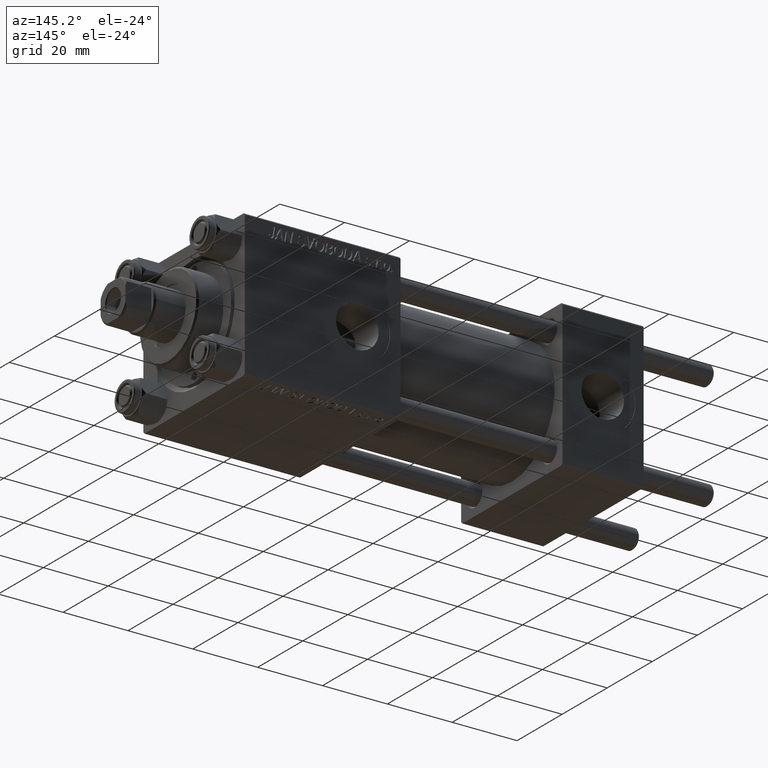
[diagram: clean part render]
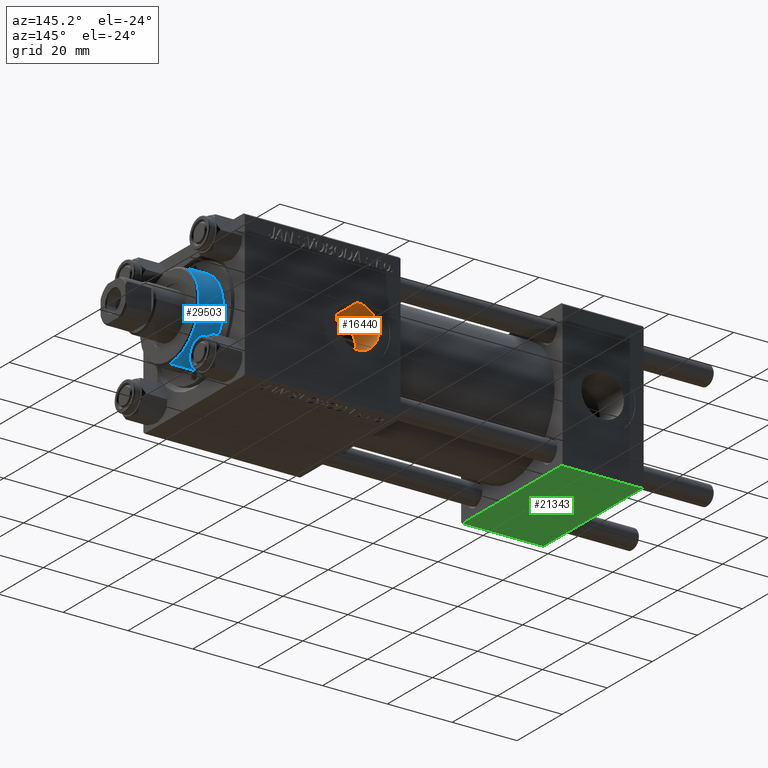
[diagram: same view with three faces highlighted in distinct colors, each labeled with its STEP entity id]
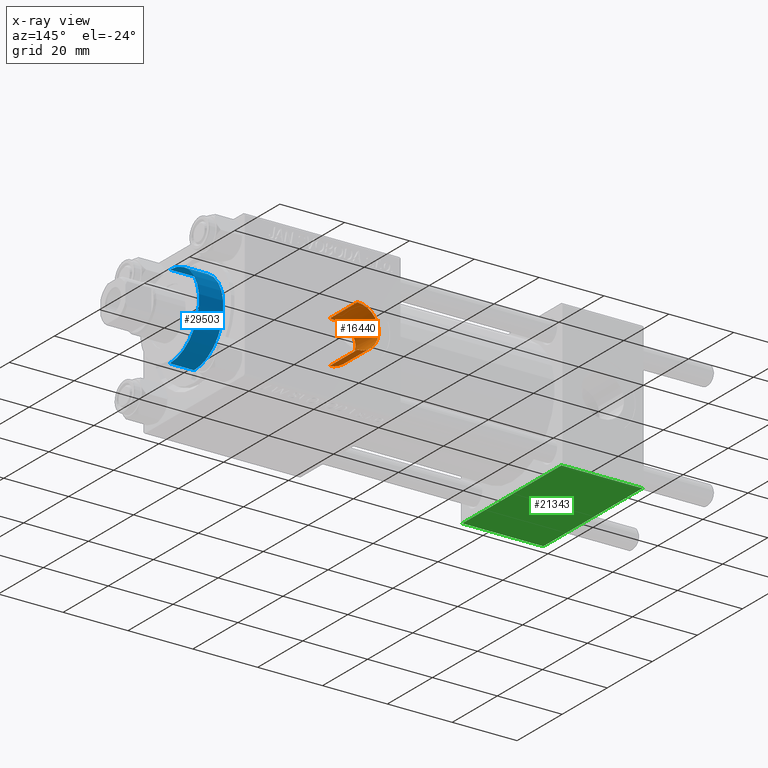
[diagram: x-ray of the same camera — body ghosted, the three highlighted faces saturated]
A machine part, auxiliary view with three faces highlighted in distinct colors.
The next image is the same camera in x-ray (body ghosted, the three faces saturated) — at least one of them is partly hidden behind the body in this view.
Their STEP definitions:

[orange] entity #16440 — the highlighted cylindrical surface (edge-blend (fillet) strip) has radius 6.58 mm, axis along (0, 1, 0).
#179 = VERTEX_POINT ( 'NONE', #22243 ) ;
#506 = FACE_OUTER_BOUND ( 'NONE', #4933, .T. ) ;
#721 = CARTESIAN_POINT ( 'NONE',  ( 81.92692453675883257, 11.81246393882862478, 2.152144203523993937 ) ) ;
#989 = CARTESIAN_POINT ( 'NONE',  ( 84.14331738735741339, 10.80807944124430975, -5.216075036321163871 ) ) ;
#1231 = CARTESIAN_POINT ( 'NONE',  ( 87.72334440891471274, 10.04224737810564783, -6.569166476270402732 ) ) ;
#1471 = EDGE_CURVE ( 'NONE', #20671, #22193, #35455, .T. ) ;
#1481 = CARTESIAN_POINT ( 'NONE',  ( 81.92791627990290237, 11.81195067792281073, -2.154513105999618539 ) ) ;
#2523 = CARTESIAN_POINT ( 'NONE',  ( 82.58800828646253933, 11.47779605330753760, 3.506329894185578055 ) ) ;
#2773 = CARTESIAN_POINT ( 'NONE',  ( 84.66633050929013393, 10.62460836123963759, 5.579886064933754497 ) ) ;
#4638 = CARTESIAN_POINT ( 'NONE',  ( 83.21040602198957004, 11.18609024083188075, -4.356175426767603831 ) ) ;
#4897 = CARTESIAN_POINT ( 'NONE',  ( 82.26078951430649511, 11.63975926202504141, -2.946202617558323134 ) ) ;
#4933 = EDGE_LOOP ( 'NONE', ( #26949, #38681, #28072, #16538 ) ) ;
#5406 = CARTESIAN_POINT ( 'NONE',  ( 84.66302119280365446, 10.62569442210850568, -5.577825156558979813 ) ) ;
#6184 = CARTESIAN_POINT ( 'NONE',  ( 86.42261344862731676, 10.17565051405401810, 6.361342860635859076 ) ) ;
#6245 = CARTESIAN_POINT ( 'NONE',  ( 88.16000000000001080, 4.700000000000002842, 6.580000000000002736 ) ) ;
#6437 = CARTESIAN_POINT ( 'NONE',  ( 84.14124067798248063, 10.80490313542549430, 5.227216615325284366 ) ) ;
#6702 = CARTESIAN_POINT ( 'NONE',  ( 82.27209397609102837, 11.63456671615955429, 2.945387911289057303 ) ) ;
#8813 = CARTESIAN_POINT ( 'NONE',  ( 82.46849301059097570, 11.53487922796092491, -3.329098200953052533 ) ) ;
#9594 = CARTESIAN_POINT ( 'NONE',  ( 81.79840178338722012, 11.88141915637910984, 1.737946633568234311 ) ) ;
#10086 = VECTOR ( 'NONE', #15300, 1000.000000000000000 ) ;
#10183 = LINE ( 'NONE', #6245, #45935 ) ;
#10599 = LINE ( 'NONE', #26529, #10086 ) ;
#12017 = CARTESIAN_POINT ( 'NONE',  ( 88.16000000000001080, 10.03511833512689755, 6.580000000000002736 ) ) ;
#13018 = CARTESIAN_POINT ( 'NONE',  ( 81.59110585396454951, 11.99389956774507837, -0.4411630255255479804 ) ) ;
#13276 = CARTESIAN_POINT ( 'NONE',  ( 81.66724575269537922, 11.95232634430982799, 1.090431050912195055 ) ) ;
#13345 = VERTEX_POINT ( 'NONE', #21236 ) ;
#13540 = CARTESIAN_POINT ( 'NONE',  ( 87.06651958989566253, 10.09227490979967534, -6.492199293939834526 ) ) ;
#15300 = DIRECTION ( 'NONE',  ( -0.000000000000000000, 1.000000000000000000, -0.000000000000000000 ) ) ;
#16440 = ADVANCED_FACE ( 'NONE', ( #506 ), #47054, .F. ) ;
#16538 = ORIENTED_EDGE ( 'NONE', *, *, #31294, .F. ) ;
#17174 = CARTESIAN_POINT ( 'NONE',  ( 81.63421029532429429, 11.97034665176205159, 0.8709940320246088996 ) ) ;
#17696 = CARTESIAN_POINT ( 'NONE',  ( 86.01032013190777548, 10.25555559115666249, -6.233855403290397668 ) ) ;
#18578 = CARTESIAN_POINT ( 'NONE',  ( 88.16000000000001080, 10.03511833512689577, -6.580000000000002736 ) ) ;
#18711 = CARTESIAN_POINT ( 'NONE',  ( 88.16000000000001080, 10.03511833512689755, 6.580000000000002736 ) ) ;
#18732 = CARTESIAN_POINT ( 'NONE',  ( 88.16000000000001080, 22.30000000000000426, 0.000000000000000000 ) ) ;
#20654 = CIRCLE ( 'NONE', #46553, 6.580000000000002736 ) ;
#20671 = VERTEX_POINT ( 'NONE', #18578 ) ;
#20839 = CARTESIAN_POINT ( 'NONE',  ( 81.63536147057085657, 11.96971864661187013, -0.8798222418185276394 ) ) ;
#21097 = CARTESIAN_POINT ( 'NONE',  ( 88.16000000000001080, 10.03511833512689577, -6.580000000000002736 ) ) ;
#21236 = CARTESIAN_POINT ( 'NONE',  ( 88.16000000000001080, 22.30000000000000426, -6.580000000000002736 ) ) ;
#21593 = EDGE_CURVE ( 'NONE', #13345, #179, #20654, .T. ) ;
#22193 = VERTEX_POINT ( 'NONE', #12017 ) ;
#22243 = CARTESIAN_POINT ( 'NONE',  ( 88.16000000000001080, 22.30000000000000426, 6.580000000000002736 ) ) ;
#22384 = CARTESIAN_POINT ( 'NONE',  ( 87.72126437056958537, 10.03511833512689400, 6.580000000000001847 ) ) ;
#23258 = DIRECTION ( 'NONE',  ( -0.000000000000000000, 1.000000000000000000, -0.000000000000000000 ) ) ;
#24507 = CARTESIAN_POINT ( 'NONE',  ( 84.84422849243432552, 10.56720744405964396, -5.687487761341403214 ) ) ;
#26529 = CARTESIAN_POINT ( 'NONE',  ( 88.16000000000001080, 4.700000000000002842, -6.580000000000002736 ) ) ;
#26556 = CARTESIAN_POINT ( 'NONE',  ( 83.21461832270334469, 11.18417938140376933, 4.361187716749667764 ) ) ;
#26949 = ORIENTED_EDGE ( 'NONE', *, *, #1471, .F. ) ;
#28072 = ORIENTED_EDGE ( 'NONE', *, *, #21593, .T. ) ;
#28433 = CARTESIAN_POINT ( 'NONE',  ( 84.31256480084407201, 10.74612854872635204, -5.342119115427747644 ) ) ;
#28678 = CARTESIAN_POINT ( 'NONE',  ( 85.21937437310127450, 10.45556366500529322, -5.890210407805385628 ) ) ;
#31294 = EDGE_CURVE ( 'NONE', #22193, #179, #10183, .T. ) ;
#32613 = CARTESIAN_POINT ( 'NONE',  ( 82.17803210261271829, 11.68256857755557654, 2.749381507800110480 ) ) ;
#32861 = CARTESIAN_POINT ( 'NONE',  ( 82.94278474601507867, 11.30838281981847615, -4.031973665051350686 ) ) ;
#33889 = CARTESIAN_POINT ( 'NONE',  ( 86.01268992421078963, 10.25512067425004581, 6.234534082008030609 ) ) ;
#33957 = DIRECTION ( 'NONE',  ( -0.000000000000000000, 1.000000000000000000, -0.000000000000000000 ) ) ;
#34676 = DIRECTION ( 'NONE',  ( 0.000000000000000000, 0.000000000000000000, 1.000000000000000000 ) ) ;
#35455 = B_SPLINE_CURVE_WITH_KNOTS ( 'NONE', 3,
 ( #21097, #45161, #1231, #48561, #13540, #40457, #17696, #48292, #28678, #24507, #5406, #28433, #989, #48803, #44393, #4638, #32861, #8813, #4897, #1481, #49061, #36529, #20839, #13018, #40978, #45407, #17174, #13276, #9594, #721, #32613, #6702, #41749, #2523, #38337, #26556, #38592, #6437, #2773, #46183, #42519, #42259, #33889, #6184, #38073, #22384, #18711 ),
 .UNSPECIFIED., .F., .F.,
 ( 4, 2, 2, 2, 2, 2, 2, 2, 2, 2, 2, 2, 1, 2, 2, 2, 2, 2, 2, 2, 2, 2, 2, 4 ),
 ( 0.008090025326349975510, 0.008745587790799536076, 0.009401150255249096643, 0.01071227518414825768, 0.01136783764859785641, 0.01202340011304745514, 0.01267896257749705213, 0.01333452504194665086, 0.01464564997084587608, 0.01595677489974510130, 0.01726789982864432998, 0.01792346229309394606, 0.01857902475754356214, 0.01923458722199317822, 0.01989014968644279430, 0.02120127461534201951, 0.02185683707979162518, 0.02251239954424123085, 0.02382352447314046648, 0.02513464940203970210, 0.02579021186648933553, 0.02644577433093897242, 0.02775689925983824274, 0.02906802418873751306 ),
 .UNSPECIFIED. ) ;
#36529 = CARTESIAN_POINT ( 'NONE',  ( 81.66890798242759786, 11.95142353494364684, -1.099984896388638056 ) ) ;
#38073 = CARTESIAN_POINT ( 'NONE',  ( 87.27418523084442370, 10.06528783296985807, 6.534564041632726195 ) ) ;
#38337 = CARTESIAN_POINT ( 'NONE',  ( 82.94430232334764241, 11.30767635708604857, 4.033988308872869410 ) ) ;
#38592 = CARTESIAN_POINT ( 'NONE',  ( 83.81627275966421564, 10.93146993042153881, 4.960724936582859179 ) ) ;
#38681 = ORIENTED_EDGE ( 'NONE', *, *, #47884, .T. ) ;
#39217 = DIRECTION ( 'NONE',  ( 0.000000000000000000, 0.000000000000000000, 1.000000000000000000 ) ) ;
#40457 = CARTESIAN_POINT ( 'NONE',  ( 86.42269951033787834, 10.17549344170297765, -6.361602889734552235 ) ) ;
#40978 = CARTESIAN_POINT ( 'NONE',  ( 81.56911016431992323, 12.00598198223887536, -0.002986794243590331147 ) ) ;
#41749 = CARTESIAN_POINT ( 'NONE',  ( 82.47721420459002672, 11.53211861380629522, 3.323957415166133966 ) ) ;
#42259 = CARTESIAN_POINT ( 'NONE',  ( 85.41932257184586774, 10.40087268625353367, 5.985906462694925878 ) ) ;
#42519 = CARTESIAN_POINT ( 'NONE',  ( 85.22404293313893220, 10.45424134257971716, 5.892560772150113202 ) ) ;
#43135 = CARTESIAN_POINT ( 'NONE',  ( 88.16000000000001080, 4.700000000000002842, 0.000000000000000000 ) ) ;
#44393 = CARTESIAN_POINT ( 'NONE',  ( 83.65851603664484060, 10.99766299968148076, -4.803918020911581266 ) ) ;
#45161 = CARTESIAN_POINT ( 'NONE',  ( 87.94172617804639458, 10.03511833512689755, -6.580000000000002736 ) ) ;
#45407 = CARTESIAN_POINT ( 'NONE',  ( 81.59067767377769087, 11.99413454649824473, 0.4342419229770472233 ) ) ;
#45935 = VECTOR ( 'NONE', #33957, 1000.000000000000000 ) ;
#46183 = CARTESIAN_POINT ( 'NONE',  ( 84.84768877429586098, 10.56611204778640101, 5.689526403489867157 ) ) ;
#46553 = AXIS2_PLACEMENT_3D ( 'NONE', #18732, #46973, #34676 ) ;
#46973 = DIRECTION ( 'NONE',  ( 0.000000000000000000, 1.000000000000000000, 0.000000000000000000 ) ) ;
#47054 = CYLINDRICAL_SURFACE ( 'NONE', #47202, 6.580000000000002736 ) ;
#47202 = AXIS2_PLACEMENT_3D ( 'NONE', #43135, #23258, #39217 ) ;
#47884 = EDGE_CURVE ( 'NONE', #20671, #13345, #10599, .T. ) ;
#48292 = CARTESIAN_POINT ( 'NONE',  ( 85.41435274922443455, 10.40216819046382568, -5.983664458792121721 ) ) ;
#48561 = CARTESIAN_POINT ( 'NONE',  ( 87.28636245070519806, 10.07071531051203372, -6.525440500889050810 ) ) ;
#48803 = CARTESIAN_POINT ( 'NONE',  ( 83.81647315974653623, 10.93375815580100685, -4.947216650121129433 ) ) ;
#49061 = CARTESIAN_POINT ( 'NONE',  ( 81.79997642910183231, 11.88057639790385878, -1.742948533124687671 ) ) ;

[blue] entity #29503 — the highlighted cylindrical surface (partial cylindrical patch) has radius 13 mm, axis along (-1, -0, 0).
#250 = EDGE_CURVE ( 'NONE', #1752, #31969, #35673, .T. ) ;
#1262 = VECTOR ( 'NONE', #39658, 1000.000000000000000 ) ;
#1535 = EDGE_LOOP ( 'NONE', ( #37207, #27673, #36948, #20334 ) ) ;
#1752 = VERTEX_POINT ( 'NONE', #49713 ) ;
#4915 = DIRECTION ( 'NONE',  ( 0.000000000000000000, 0.000000000000000000, 1.000000000000000000 ) ) ;
#5295 = DIRECTION ( 'NONE',  ( -0.000000000000000000, -0.000000000000000000, -1.000000000000000000 ) ) ;
#7665 = LINE ( 'NONE', #28034, #8349 ) ;
#8349 = VECTOR ( 'NONE', #20201, 1000.000000000000000 ) ;
#9224 = CYLINDRICAL_SURFACE ( 'NONE', #47539, 13.00000000000000178 ) ;
#10988 = CARTESIAN_POINT ( 'NONE',  ( 13.00000000000000178, 1.592040838891559293E-15, 28.69999999999999929 ) ) ;
#15906 = CIRCLE ( 'NONE', #49281, 13.00000000000000178 ) ;
#16733 = EDGE_CURVE ( 'NONE', #31969, #41646, #51414, .T. ) ;
#20201 = DIRECTION ( 'NONE',  ( -0.000000000000000000, -0.000000000000000000, -1.000000000000000000 ) ) ;
#20334 = ORIENTED_EDGE ( 'NONE', *, *, #27606, .F. ) ;
#20430 = VERTEX_POINT ( 'NONE', #39919 ) ;
#21232 = DIRECTION ( 'NONE',  ( -1.000000000000000000, 0.000000000000000000, 0.000000000000000000 ) ) ;
#23168 = AXIS2_PLACEMENT_3D ( 'NONE', #31631, #32142, #24049 ) ;
#24049 = DIRECTION ( 'NONE',  ( 1.000000000000000000, 0.000000000000000000, 0.000000000000000000 ) ) ;
#24279 = DIRECTION ( 'NONE',  ( 1.000000000000000000, 0.000000000000000000, 0.000000000000000000 ) ) ;
#26758 = CARTESIAN_POINT ( 'NONE',  ( 13.00000000000000178, 1.592040838891559293E-15, 36.20000000000000995 ) ) ;
#27376 = CARTESIAN_POINT ( 'NONE',  ( 13.00000000000000178, 1.592040838891559293E-15, 36.69999999999999574 ) ) ;
#27606 = EDGE_CURVE ( 'NONE', #1752, #20430, #7665, .T. ) ;
#27673 = ORIENTED_EDGE ( 'NONE', *, *, #16733, .T. ) ;
#28034 = CARTESIAN_POINT ( 'NONE',  ( -13.00000000000000178, 0.000000000000000000, 36.69999999999999574 ) ) ;
#29077 = FACE_OUTER_BOUND ( 'NONE', #1535, .T. ) ;
#29503 = ADVANCED_FACE ( 'NONE', ( #29077 ), #9224, .T. ) ;
#31631 = CARTESIAN_POINT ( 'NONE',  ( 0.000000000000000000, 0.000000000000000000, 36.20000000000000995 ) ) ;
#31969 = VERTEX_POINT ( 'NONE', #26758 ) ;
#32142 = DIRECTION ( 'NONE',  ( 0.000000000000000000, 0.000000000000000000, -1.000000000000000000 ) ) ;
#35673 = CIRCLE ( 'NONE', #23168, 13.00000000000000178 ) ;
#36937 = CARTESIAN_POINT ( 'NONE',  ( 0.000000000000000000, 0.000000000000000000, 36.69999999999999574 ) ) ;
#36948 = ORIENTED_EDGE ( 'NONE', *, *, #51273, .T. ) ;
#37207 = ORIENTED_EDGE ( 'NONE', *, *, #250, .T. ) ;
#39658 = DIRECTION ( 'NONE',  ( -0.000000000000000000, -0.000000000000000000, -1.000000000000000000 ) ) ;
#39919 = CARTESIAN_POINT ( 'NONE',  ( -13.00000000000000178, 0.000000000000000000, 28.69999999999999929 ) ) ;
#40731 = CARTESIAN_POINT ( 'NONE',  ( 0.000000000000000000, 0.000000000000000000, 28.69999999999999929 ) ) ;
#41646 = VERTEX_POINT ( 'NONE', #10988 ) ;
#47539 = AXIS2_PLACEMENT_3D ( 'NONE', #36937, #5295, #21232 ) ;
#49281 = AXIS2_PLACEMENT_3D ( 'NONE', #40731, #4915, #24279 ) ;
#49713 = CARTESIAN_POINT ( 'NONE',  ( -13.00000000000000178, 0.000000000000000000, 36.20000000000000995 ) ) ;
#51273 = EDGE_CURVE ( 'NONE', #41646, #20430, #15906, .T. ) ;
#51414 = LINE ( 'NONE', #27376, #1262 ) ;

[green] entity #21343 — the highlighted planar face has unit normal (0, 0, -1).
#558 = LINE ( 'NONE', #31153, #38280 ) ;
#1736 = LINE ( 'NONE', #20828, #23879 ) ;
#2218 = CARTESIAN_POINT ( 'NONE',  ( 25.00000000000000000, -21.99999999999997158, -22.50000000000000711 ) ) ;
#3321 = VECTOR ( 'NONE', #16346, 1000.000000000000000 ) ;
#3552 = PLANE ( 'NONE',  #28162 ) ;
#3563 = EDGE_CURVE ( 'NONE', #42199, #42961, #558, .T. ) ;
#4292 = EDGE_CURVE ( 'NONE', #21139, #40910, #41455, .T. ) ;
#5104 = EDGE_CURVE ( 'NONE', #42199, #21139, #16874, .T. ) ;
#7593 = ORIENTED_EDGE ( 'NONE', *, *, #3563, .F. ) ;
#10785 = VECTOR ( 'NONE', #41980, 1000.000000000000000 ) ;
#12084 = DIRECTION ( 'NONE',  ( 0.000000000000000000, -1.000000000000000000, -2.312964634635742957E-16 ) ) ;
#15317 = DIRECTION ( 'NONE',  ( 0.000000000000000000, 2.312964634635742957E-16, -1.000000000000000000 ) ) ;
#16346 = DIRECTION ( 'NONE',  ( 1.000000000000000000, 0.000000000000000000, 0.000000000000000000 ) ) ;
#16874 = LINE ( 'NONE', #20014, #3321 ) ;
#17648 = EDGE_CURVE ( 'NONE', #40910, #42961, #1736, .T. ) ;
#19487 = CARTESIAN_POINT ( 'NONE',  ( 25.00000000000000000, 22.50000000000000000, -22.49999999999999645 ) ) ;
#19795 = CARTESIAN_POINT ( 'NONE',  ( 0.000000000000000000, -21.99999999999997158, -22.50000000000000711 ) ) ;
#20014 = CARTESIAN_POINT ( 'NONE',  ( 25.00000000000000000, 21.99999999999999289, -22.49999999999999645 ) ) ;
#20828 = CARTESIAN_POINT ( 'NONE',  ( 0.000000000000000000, -21.99999999999998579, -22.50000000000000711 ) ) ;
#21139 = VERTEX_POINT ( 'NONE', #28155 ) ;
#21343 = ADVANCED_FACE ( 'NONE', ( #30988 ), #3552, .T. ) ;
#23879 = VECTOR ( 'NONE', #37035, 1000.000000000000000 ) ;
#28155 = CARTESIAN_POINT ( 'NONE',  ( 25.00000000000000000, 21.99999999999999289, -22.49999999999999645 ) ) ;
#28162 = AXIS2_PLACEMENT_3D ( 'NONE', #19487, #15317, #35690 ) ;
#29454 = ORIENTED_EDGE ( 'NONE', *, *, #17648, .T. ) ;
#29647 = ORIENTED_EDGE ( 'NONE', *, *, #4292, .T. ) ;
#30988 = FACE_OUTER_BOUND ( 'NONE', #46740, .T. ) ;
#31153 = CARTESIAN_POINT ( 'NONE',  ( 0.000000000000000000, 22.50000000000000000, -22.49999999999999645 ) ) ;
#35690 = DIRECTION ( 'NONE',  ( 0.000000000000000000, 1.000000000000000000, 2.312964634635742957E-16 ) ) ;
#36843 = ORIENTED_EDGE ( 'NONE', *, *, #5104, .T. ) ;
#37035 = DIRECTION ( 'NONE',  ( -1.000000000000000000, 0.000000000000000000, 0.000000000000000000 ) ) ;
#38046 = CARTESIAN_POINT ( 'NONE',  ( 0.000000000000000000, 21.99999999999999289, -22.49999999999999645 ) ) ;
#38280 = VECTOR ( 'NONE', #12084, 1000.000000000000000 ) ;
#40910 = VERTEX_POINT ( 'NONE', #2218 ) ;
#41455 = LINE ( 'NONE', #41722, #10785 ) ;
#41722 = CARTESIAN_POINT ( 'NONE',  ( 25.00000000000000000, 22.50000000000000000, -22.49999999999999645 ) ) ;
#41980 = DIRECTION ( 'NONE',  ( 0.000000000000000000, -1.000000000000000000, -2.312964634635742957E-16 ) ) ;
#42199 = VERTEX_POINT ( 'NONE', #38046 ) ;
#42961 = VERTEX_POINT ( 'NONE', #19795 ) ;
#46740 = EDGE_LOOP ( 'NONE', ( #7593, #36843, #29647, #29454 ) ) ;